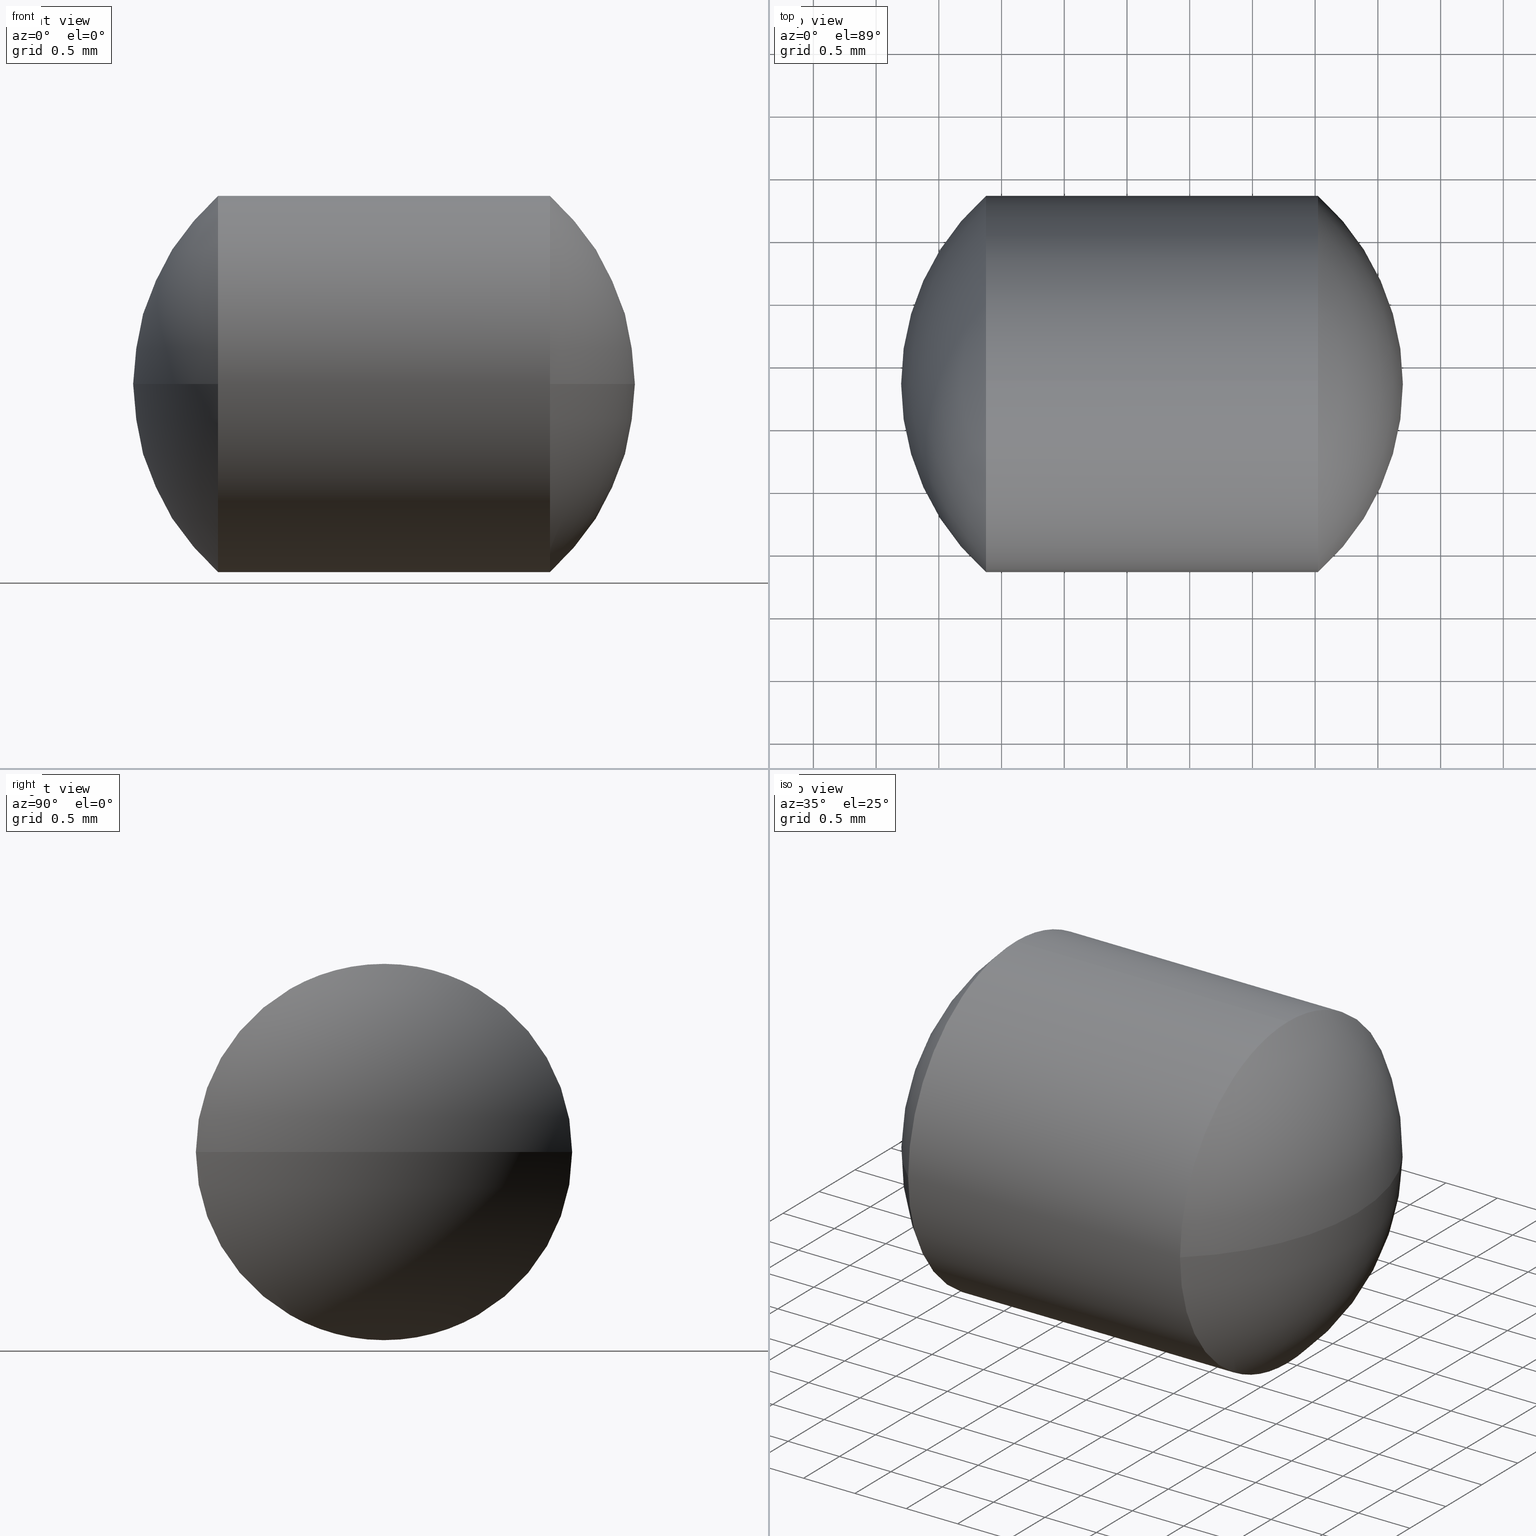
[diagram: canonical four-view strip — front | top / right | iso, engineering-drawing reading convention]
A machine part, canonical four-view strip (front | top / right | iso — engineering-drawing reading convention). The complete STEP part file that produces these views, byte-faithful:
ISO-10303-21;
HEADER;
FILE_DESCRIPTION (( 'STEP AP203' ),
    '1' );
FILE_NAME ('165002.STEP',
    '2019-06-04T01:59:16',
    ( '' ),
    ( '' ),
    'SwSTEP 2.0',
    'SolidWorks 2016',
    '' );
FILE_SCHEMA (( 'CONFIG_CONTROL_DESIGN' ));
ENDSEC;

DATA;
#1 = DIRECTION ( 'NONE',  ( -1.000000000000000000, -0.0000000000000000000, -0.0000000000000000000 ) ) ;
#2 = PRODUCT_RELATED_PRODUCT_CATEGORY ( 'detail', '', ( #69 ) ) ;
#3 = APPROVAL_ROLE ( '' ) ;
#4 = CALENDAR_DATE ( 2019, 4, 6 ) ;
#5 = DATE_TIME_ROLE ( 'classification_date' ) ;
#6 = DIRECTION ( 'NONE',  ( 0.0000000000000000000, 1.000000000000000000, 1.224646799147353900E-016 ) ) ;
#7 = CIRCLE ( 'NONE', #316, 2.000000000000001800 ) ;
#8 = EDGE_CURVE ( 'NONE', #278, #230, #55, .T. ) ;
#9 = VERTEX_POINT ( 'NONE', #54 ) ;
#10 = DATE_AND_TIME ( #130, #204 ) ;
#11 = CIRCLE ( 'NONE', #92, 1.500000000000029100 ) ;
#12 = AXIS2_PLACEMENT_3D ( 'NONE', #246, #307, #193 ) ;
#13 = APPROVAL_DATE_TIME ( #99, #125 ) ;
#14 = VERTEX_POINT ( 'NONE', #214 ) ;
#15 = DIRECTION ( 'NONE',  ( 0.0000000000000000000, 0.0000000000000000000, 1.000000000000000000 ) ) ;
#16 = SPHERICAL_SURFACE ( 'NONE', #78, 1.999999999999992200 ) ;
#17 = ADVANCED_FACE ( 'NONE', ( #291 ), #212, .T. ) ;
#18 = APPLICATION_CONTEXT ( 'configuration controlled 3d designs of mechanical parts and assemblies' ) ;
#19 = CC_DESIGN_PERSON_AND_ORGANIZATION_ASSIGNMENT ( #70, #238, ( #242 ) ) ;
#20 = APPLICATION_PROTOCOL_DEFINITION ( 'international standard', 'config_control_design', 1994, #39 ) ;
#21 = COORDINATED_UNIVERSAL_TIME_OFFSET ( 8, 0, .AHEAD. ) ;
#22 = EDGE_LOOP ( 'NONE', ( #26, #216, #122, #64, #342, #182 ) ) ;
#23 = FACE_OUTER_BOUND ( 'NONE', #189, .T. ) ;
#24 = AXIS2_PLACEMENT_3D ( 'NONE', #345, #79, #82 ) ;
#25 = CARTESIAN_POINT ( 'NONE',  ( 231.6993485743448400, 133.3448637497280600, 0.0000000000000000000 ) ) ;
#26 = ORIENTED_EDGE ( 'NONE', *, *, #237, .T. ) ;
#27 = VERTEX_POINT ( 'NONE', #340 ) ;
#28 = CARTESIAN_POINT ( 'NONE',  ( 229.6993485743448400, 133.3448637497280600, 0.0000000000000000000 ) ) ;
#29 = AXIS2_PLACEMENT_3D ( 'NONE', #330, #42, #121 ) ;
#30 = PERSON_AND_ORGANIZATION_ROLE ( 'classification_officer' ) ;
#31 = APPROVAL_ROLE ( '' ) ;
#32 = MANIFOLD_SOLID_BREP ( '��ת1', #321 ) ;
#33 = CC_DESIGN_PERSON_AND_ORGANIZATION_ASSIGNMENT ( #177, #296, ( #302 ) ) ;
#34 = LOCAL_TIME ( 9, 59, 16.00000000000000000, #303 ) ;
#35 = CALENDAR_DATE ( 2019, 4, 6 ) ;
#36 = ORIENTED_EDGE ( 'NONE', *, *, #259, .T. ) ;
#37 = CC_DESIGN_APPROVAL ( #186, ( #66 ) ) ;
#38 = DIRECTION ( 'NONE',  ( -1.000000000000000000, -0.0000000000000000000, -0.0000000000000000000 ) ) ;
#39 = APPLICATION_CONTEXT ( 'configuration controlled 3d designs of mechanical parts and assemblies' ) ;
#40 = AXIS2_PLACEMENT_3D ( 'NONE', #105, #132, #184 ) ;
#41 = CARTESIAN_POINT ( 'NONE',  ( 228.3764729188125400, 133.3448637497280600, 0.0000000000000000000 ) ) ;
#42 = DIRECTION ( 'NONE',  ( 0.0000000000000000000, 0.0000000000000000000, 1.000000000000000000 ) ) ;
#43 = LOCAL_TIME ( 9, 59, 16.00000000000000000, #164 ) ;
#44 = DATE_TIME_ROLE ( 'classification_date' ) ;
#45 = CALENDAR_DATE ( 2019, 4, 6 ) ;
#46 = CALENDAR_DATE ( 2019, 4, 6 ) ;
#47 = AXIS2_PLACEMENT_3D ( 'NONE', #108, #262, #6 ) ;
#48 = DIRECTION ( 'NONE',  ( 1.000000000000000000, 0.0000000000000000000, 0.0000000000000000000 ) ) ;
#49 = ORIENTED_EDGE ( 'NONE', *, *, #319, .T. ) ;
#50 = CC_DESIGN_PERSON_AND_ORGANIZATION_ASSIGNMENT ( #165, #162, ( #302 ) ) ;
#51 = DIRECTION ( 'NONE',  ( -0.0000000000000000000, 0.0000000000000000000, -1.000000000000000000 ) ) ;
#52 = APPLICATION_PROTOCOL_DEFINITION ( 'international standard', 'config_control_design', 1994, #210 ) ;
#53 = AXIS2_PLACEMENT_3D ( 'NONE', #269, #112, #48 ) ;
#54 = CARTESIAN_POINT ( 'NONE',  ( 228.3764729188125400, 131.8448637497280600, -1.836970198721032200E-016 ) ) ;
#55 = CIRCLE ( 'NONE', #53, 2.000000000000001800 ) ;
#56 = AXIS2_PLACEMENT_3D ( 'NONE', #323, #51, #239 ) ;
#57 = CARTESIAN_POINT ( 'NONE',  ( 229.6993485743448400, 133.3448637497280600, 0.0000000000000000000 ) ) ;
#58 = APPROVAL_PERSON_ORGANIZATION ( #87, #125, #65 ) ;
#59 = CARTESIAN_POINT ( 'NONE',  ( 228.3764729188125400, 133.3448637497280600, -1.500000000000001300 ) ) ;
#60 = CARTESIAN_POINT ( 'NONE',  ( 229.6993485743448400, 133.3448637497280600, 0.0000000000000000000 ) ) ;
#61 = ADVANCED_FACE ( 'NONE', ( #74 ), #217, .T. ) ;
#62 = DIRECTION ( 'NONE',  ( 0.0000000000000000000, 1.000000000000000000, 1.224646799147347500E-016 ) ) ;
#63 = ORIENTED_EDGE ( 'NONE', *, *, #218, .F. ) ;
#64 = ORIENTED_EDGE ( 'NONE', *, *, #319, .F. ) ;
#65 = APPROVAL_ROLE ( '' ) ;
#66 = SECURITY_CLASSIFICATION ( '', '', #236 ) ;
#67 = PERSON_AND_ORGANIZATION_ROLE ( 'classification_officer' ) ;
#68 = ADVANCED_BREP_SHAPE_REPRESENTATION ( '165002', ( #32, #168 ), #305 ) ;
#69 = PRODUCT ( '165002', '165002', '', ( #95 ) ) ;
#70 = PERSON_AND_ORGANIZATION ( #175, #129 ) ;
#71 = ORIENTED_EDGE ( 'NONE', *, *, #284, .F. ) ;
#72 = CIRCLE ( 'NONE', #73, 1.500000000000029100 ) ;
#73 = AXIS2_PLACEMENT_3D ( 'NONE', #298, #134, #188 ) ;
#74 = FACE_OUTER_BOUND ( 'NONE', #250, .T. ) ;
#75 = CIRCLE ( 'NONE', #287, 2.000000000000001800 ) ;
#76 = LOCAL_TIME ( 9, 59, 16.00000000000000000, #149 ) ;
#77 = APPROVAL_DATE_TIME ( #150, #310 ) ;
#78 = AXIS2_PLACEMENT_3D ( 'NONE', #28, #235, #109 ) ;
#79 = DIRECTION ( 'NONE',  ( -1.000000000000000000, -0.0000000000000000000, -0.0000000000000000000 ) ) ;
#80 = VECTOR ( 'NONE', #1, 1000.000000000000000 ) ;
#81 = DATE_TIME_ROLE ( 'creation_date' ) ;
#82 = DIRECTION ( 'NONE',  ( 0.0000000000000000000, 0.0000000000000000000, 1.000000000000000000 ) ) ;
#83 = PERSON_AND_ORGANIZATION ( #175, #129 ) ;
#84 = DESIGN_CONTEXT ( 'detailed design', #198, 'design' ) ;
#85 = CIRCLE ( 'NONE', #261, 1.500000000000001300 ) ;
#86 = CC_DESIGN_PERSON_AND_ORGANIZATION_ASSIGNMENT ( #104, #30, ( #66 ) ) ;
#87 = PERSON_AND_ORGANIZATION ( #175, #129 ) ;
#88 = ORIENTED_EDGE ( 'NONE', *, *, #152, .F. ) ;
#89 = CARTESIAN_POINT ( 'NONE',  ( 229.6993485743448400, 133.3448637497280600, 0.0000000000000000000 ) ) ;
#90 = VECTOR ( 'NONE', #131, 1000.000000000000000 ) ;
#91 = DIRECTION ( 'NONE',  ( 0.0000000000000000000, 1.000000000000000000, 0.0000000000000000000 ) ) ;
#92 = AXIS2_PLACEMENT_3D ( 'NONE', #93, #277, #194 ) ;
#93 = CARTESIAN_POINT ( 'NONE',  ( 231.0222242298770800, 133.3448637497280600, 0.0000000000000000000 ) ) ;
#94 =( NAMED_UNIT ( * ) PLANE_ANGLE_UNIT ( ) SI_UNIT ( $, .RADIAN. ) );
#95 = MECHANICAL_CONTEXT ( 'NONE', #18, 'mechanical' ) ;
#96 = MECHANICAL_CONTEXT ( 'NONE', #39, 'mechanical' ) ;
#97 = DATE_AND_TIME ( #317, #43 ) ;
#98 = CALENDAR_DATE ( 2019, 4, 6 ) ;
#99 = DATE_AND_TIME ( #4, #314 ) ;
#100 = AXIS2_PLACEMENT_3D ( 'NONE', #60, #142, #91 ) ;
#101 = CARTESIAN_POINT ( 'NONE',  ( 227.5435306962462500, 133.3448637497280600, 0.0000000000000000000 ) ) ;
#102 = VERTEX_POINT ( 'NONE', #25 ) ;
#103 = SECURITY_CLASSIFICATION ( '', '', #146 ) ;
#104 = PERSON_AND_ORGANIZATION ( #175, #129 ) ;
#105 = CARTESIAN_POINT ( 'NONE',  ( 231.0222242298770800, 133.3448637497280600, 0.0000000000000000000 ) ) ;
#106 = PERSON_AND_ORGANIZATION ( #175, #129 ) ;
#107 = ORIENTED_EDGE ( 'NONE', *, *, #237, .F. ) ;
#108 = CARTESIAN_POINT ( 'NONE',  ( 229.6993485743448400, 133.3448637497280600, 0.0000000000000000000 ) ) ;
#109 = DIRECTION ( 'NONE',  ( 0.0000000000000000000, 1.000000000000000000, 0.0000000000000000000 ) ) ;
#110 = APPROVAL_STATUS ( 'not_yet_approved' ) ;
#111 = AXIS2_PLACEMENT_3D ( 'NONE', #329, #120, #172 ) ;
#112 = DIRECTION ( 'NONE',  ( -0.0000000000000000000, 0.0000000000000000000, 1.000000000000000000 ) ) ;
#113 = COORDINATED_UNIVERSAL_TIME_OFFSET ( 8, 0, .AHEAD. ) ;
#114 = LOCAL_TIME ( 9, 59, 16.00000000000000000, #200 ) ;
#115 = ORIENTED_EDGE ( 'NONE', *, *, #222, .T. ) ;
#116 = SPHERICAL_SURFACE ( 'NONE', #100, 1.999999999999992200 ) ;
#117 = CC_DESIGN_DATE_AND_TIME_ASSIGNMENT ( #268, #5, ( #66 ) ) ;
#118 = DIRECTION ( 'NONE',  ( 1.000000000000000000, 0.0000000000000000000, 0.0000000000000000000 ) ) ;
#119 = DIRECTION ( 'NONE',  ( 0.0000000000000000000, 0.0000000000000000000, 1.000000000000000000 ) ) ;
#120 = DIRECTION ( 'NONE',  ( -1.000000000000000000, -0.0000000000000000000, -0.0000000000000000000 ) ) ;
#121 = DIRECTION ( 'NONE',  ( 1.000000000000000000, 0.0000000000000000000, 0.0000000000000000000 ) ) ;
#122 = ORIENTED_EDGE ( 'NONE', *, *, #205, .T. ) ;
#123 = APPLICATION_PROTOCOL_DEFINITION ( 'international standard', 'config_control_design', 1994, #198 ) ;
#124 = APPROVAL_DATE_TIME ( #190, #186 ) ;
#125 = APPROVAL ( #312, 'δָ��' ) ;
#126 = PERSON_AND_ORGANIZATION_ROLE ( 'design_owner' ) ;
#127 = CARTESIAN_POINT ( 'NONE',  ( 229.6993485743448400, 133.3448637497280600, 0.0000000000000000000 ) ) ;
#128 = PRODUCT_DEFINITION_SHAPE ( 'NONE', 'NONE',  #242 ) ;
#129 = ORGANIZATION ( 'δָ��', 'δָ��', '' ) ;
#130 = CALENDAR_DATE ( 2019, 4, 6 ) ;
#131 = DIRECTION ( 'NONE',  ( -1.000000000000000000, -0.0000000000000000000, -0.0000000000000000000 ) ) ;
#132 = DIRECTION ( 'NONE',  ( -1.000000000000000000, -0.0000000000000000000, -0.0000000000000000000 ) ) ;
#133 = APPROVAL_PERSON_ORGANIZATION ( #264, #343, #283 ) ;
#134 = DIRECTION ( 'NONE',  ( -1.000000000000000000, -0.0000000000000000000, -0.0000000000000000000 ) ) ;
#135 = VERTEX_POINT ( 'NONE', #326 ) ;
#136 = EDGE_LOOP ( 'NONE', ( #88, #159, #154, #151 ) ) ;
#137 = PRODUCT_DEFINITION ( 'δ֪', '', #192, #84 ) ;
#138 = CARTESIAN_POINT ( 'NONE',  ( 231.0222242298770800, 133.3448637497280600, -1.500000000000029300 ) ) ;
#139 = LOCAL_TIME ( 9, 59, 16.00000000000000000, #294 ) ;
#140 = DIRECTION ( 'NONE',  ( -1.000000000000000000, -0.0000000000000000000, -0.0000000000000000000 ) ) ;
#141 = CIRCLE ( 'NONE', #47, 2.000000000000001800 ) ;
#142 = DIRECTION ( 'NONE',  ( -0.0000000000000000000, 0.0000000000000000000, -1.000000000000000000 ) ) ;
#143 = ORIENTED_EDGE ( 'NONE', *, *, #240, .F. ) ;
#144 = CC_DESIGN_APPROVAL ( #337, ( #302 ) ) ;
#145 = CARTESIAN_POINT ( 'NONE',  ( 231.0222242298770800, 133.3448637497280600, 0.0000000000000000000 ) ) ;
#146 = SECURITY_CLASSIFICATION_LEVEL ( 'unclassified' ) ;
#147 = PRODUCT ( '165002', '165002', '', ( #96 ) ) ;
#148 = DATE_TIME_ROLE ( 'creation_date' ) ;
#149 = COORDINATED_UNIVERSAL_TIME_OFFSET ( 8, 0, .AHEAD. ) ;
#150 = DATE_AND_TIME ( #215, #208 ) ;
#151 = ORIENTED_EDGE ( 'NONE', *, *, #8, .T. ) ;
#152 = EDGE_CURVE ( 'NONE', #9, #230, #141, .T. ) ;
#153 = LINE ( 'NONE', #327, #80 ) ;
#154 = ORIENTED_EDGE ( 'NONE', *, *, #191, .T. ) ;
#155 = UNCERTAINTY_MEASURE_WITH_UNIT (LENGTH_MEASURE( 1.000000000000000100E-005 ), #247, 'distance_accuracy_value', 'NONE');
#156 = CYLINDRICAL_SURFACE ( 'NONE', #338, 1.500000000000015100 ) ;
#157 = CC_DESIGN_APPROVAL ( #267, ( #137 ) ) ;
#158 = APPROVAL_PERSON_ORGANIZATION ( #225, #310, #31 ) ;
#159 = ORIENTED_EDGE ( 'NONE', *, *, #300, .T. ) ;
#160 = CARTESIAN_POINT ( 'NONE',  ( 227.6993485743448400, 133.3448637497280600, 0.0000000000000000000 ) ) ;
#161 = LINE ( 'NONE', #293, #90 ) ;
#162 = PERSON_AND_ORGANIZATION_ROLE ( 'design_supplier' ) ;
#163 = CC_DESIGN_PERSON_AND_ORGANIZATION_ASSIGNMENT ( #253, #251, ( #137 ) ) ;
#164 = COORDINATED_UNIVERSAL_TIME_OFFSET ( 8, 0, .AHEAD. ) ;
#165 = PERSON_AND_ORGANIZATION ( #175, #129 ) ;
#166 = DATE_AND_TIME ( #35, #139 ) ;
#167 = CARTESIAN_POINT ( 'NONE',  ( 231.0222242298770800, 131.8448637497280300, -1.836970198721071100E-016 ) ) ;
#168 = AXIS2_PLACEMENT_3D ( 'NONE', #308, #332, #219 ) ;
#169 = DIRECTION ( 'NONE',  ( 0.0000000000000000000, 0.0000000000000000000, 1.000000000000000000 ) ) ;
#170 = ADVANCED_FACE ( 'NONE', ( #23 ), #226, .T. ) ;
#171 = CARTESIAN_POINT ( 'NONE',  ( 227.5435306962462500, 133.3448637497280600, 0.0000000000000000000 ) ) ;
#172 = DIRECTION ( 'NONE',  ( 0.0000000000000000000, 0.0000000000000000000, 1.000000000000000000 ) ) ;
#173 = PRODUCT_DEFINITION_SHAPE ( 'NONE', 'NONE',  #137 ) ;
#174 = APPROVAL_STATUS ( 'not_yet_approved' ) ;
#175 = PERSON ( 'δָ��', 'δָ��', 'δָ��', ('δָ��'), ('δָ��'), ('δָ��') ) ;
#176 = CC_DESIGN_PERSON_AND_ORGANIZATION_ASSIGNMENT ( #339, #311, ( #192 ) ) ;
#177 = PERSON_AND_ORGANIZATION ( #175, #129 ) ;
#178 = PERSON_AND_ORGANIZATION ( #175, #129 ) ;
#179 = EDGE_LOOP ( 'NONE', ( #333, #209, #63, #71 ) ) ;
#180 = DIRECTION ( 'NONE',  ( -1.000000000000000000, -0.0000000000000000000, -0.0000000000000000000 ) ) ;
#181 = CC_DESIGN_PERSON_AND_ORGANIZATION_ASSIGNMENT ( #178, #221, ( #192 ) ) ;
#182 = ORIENTED_EDGE ( 'NONE', *, *, #222, .F. ) ;
#183 = COORDINATED_UNIVERSAL_TIME_OFFSET ( 8, 0, .AHEAD. ) ;
#184 = DIRECTION ( 'NONE',  ( 0.0000000000000000000, 0.0000000000000000000, 1.000000000000000000 ) ) ;
#185 = APPROVAL_STATUS ( 'not_yet_approved' ) ;
#186 = APPROVAL ( #185, 'δָ��' ) ;
#187 = APPROVAL_STATUS ( 'not_yet_approved' ) ;
#188 = DIRECTION ( 'NONE',  ( 0.0000000000000000000, 0.0000000000000000000, 1.000000000000000000 ) ) ;
#189 = EDGE_LOOP ( 'NONE', ( #223, #295, #273, #49 ) ) ;
#190 = DATE_AND_TIME ( #98, #258 ) ;
#191 = EDGE_CURVE ( 'NONE', #135, #278, #276, .T. ) ;
#192 = PRODUCT_DEFINITION_FORMATION_WITH_SPECIFIED_SOURCE ( '�κ�', '', #147, .NOT_KNOWN. ) ;
#193 = DIRECTION ( 'NONE',  ( 0.0000000000000000000, 0.0000000000000000000, 1.000000000000000000 ) ) ;
#194 = DIRECTION ( 'NONE',  ( 0.0000000000000000000, 0.0000000000000000000, 1.000000000000000000 ) ) ;
#195 = ORIENTED_EDGE ( 'NONE', *, *, #259, .F. ) ;
#196 = CC_DESIGN_PERSON_AND_ORGANIZATION_ASSIGNMENT ( #106, #67, ( #103 ) ) ;
#197 = ORIENTED_EDGE ( 'NONE', *, *, #299, .F. ) ;
#198 = APPLICATION_CONTEXT ( 'configuration controlled 3d designs of mechanical parts and assemblies' ) ;
#199 = FACE_OUTER_BOUND ( 'NONE', #22, .T. ) ;
#200 = COORDINATED_UNIVERSAL_TIME_OFFSET ( 8, 0, .AHEAD. ) ;
#201 = CC_DESIGN_PERSON_AND_ORGANIZATION_ASSIGNMENT ( #83, #126, ( #147 ) ) ;
#202 = ORIENTED_EDGE ( 'NONE', *, *, #218, .T. ) ;
#203 = APPROVAL_PERSON_ORGANIZATION ( #280, #267, #282 ) ;
#204 = LOCAL_TIME ( 9, 59, 16.00000000000000000, #113 ) ;
#205 = EDGE_CURVE ( 'NONE', #341, #266, #161, .T. ) ;
#206 = CC_DESIGN_SECURITY_CLASSIFICATION ( #103, ( #192 ) ) ;
#207 = APPROVAL_ROLE ( '' ) ;
#208 = LOCAL_TIME ( 9, 59, 16.00000000000000000, #183 ) ;
#209 = ORIENTED_EDGE ( 'NONE', *, *, #240, .T. ) ;
#210 = APPLICATION_CONTEXT ( 'configuration controlled 3d designs of mechanical parts and assemblies' ) ;
#211 = CIRCLE ( 'NONE', #40, 1.500000000000029100 ) ;
#212 = SPHERICAL_SURFACE ( 'NONE', #325, 2.000000000000002700 ) ;
#213 = CC_DESIGN_DATE_AND_TIME_ASSIGNMENT ( #233, #44, ( #103 ) ) ;
#214 = CARTESIAN_POINT ( 'NONE',  ( 231.0222242298770800, 134.8448637497280900, 0.0000000000000000000 ) ) ;
#215 = CALENDAR_DATE ( 2019, 4, 6 ) ;
#216 = ORIENTED_EDGE ( 'NONE', *, *, #284, .T. ) ;
#217 = CYLINDRICAL_SURFACE ( 'NONE', #274, 1.500000000000015100 ) ;
#218 = EDGE_CURVE ( 'NONE', #341, #315, #211, .T. ) ;
#219 = DIRECTION ( 'NONE',  ( 1.000000000000000000, 0.0000000000000000000, 0.0000000000000000000 ) ) ;
#220 = CARTESIAN_POINT ( 'NONE',  ( 228.3764729188125400, 134.8448637497280600, 0.0000000000000000000 ) ) ;
#221 = PERSON_AND_ORGANIZATION_ROLE ( 'creator' ) ;
#222 = EDGE_CURVE ( 'NONE', #27, #135, #153, .T. ) ;
#223 = ORIENTED_EDGE ( 'NONE', *, *, #299, .T. ) ;
#224 = ADVANCED_FACE ( 'NONE', ( #297 ), #16, .T. ) ;
#225 = PERSON_AND_ORGANIZATION ( #175, #129 ) ;
#226 = SPHERICAL_SURFACE ( 'NONE', #56, 2.000000000000002700 ) ;
#227 = DIRECTION ( 'NONE',  ( 0.0000000000000000000, 1.000000000000000000, 0.0000000000000000000 ) ) ;
#228 = PRODUCT_RELATED_PRODUCT_CATEGORY ( 'detail', '', ( #147 ) ) ;
#229 = CIRCLE ( 'NONE', #12, 1.500000000000001300 ) ;
#230 = VERTEX_POINT ( 'NONE', #160 ) ;
#231 = SHAPE_DEFINITION_REPRESENTATION ( #128, #68 ) ;
#232 = CC_DESIGN_SECURITY_CLASSIFICATION ( #66, ( #302 ) ) ;
#233 = DATE_AND_TIME ( #272, #288 ) ;
#234 = ORIENTED_EDGE ( 'NONE', *, *, #205, .F. ) ;
#235 = DIRECTION ( 'NONE',  ( -0.0000000000000000000, 0.0000000000000000000, -1.000000000000000000 ) ) ;
#236 = SECURITY_CLASSIFICATION_LEVEL ( 'unclassified' ) ;
#237 = EDGE_CURVE ( 'NONE', #27, #14, #72, .T. ) ;
#238 = PERSON_AND_ORGANIZATION_ROLE ( 'creator' ) ;
#239 = DIRECTION ( 'NONE',  ( 0.0000000000000000000, 1.000000000000000000, 0.0000000000000000000 ) ) ;
#240 = EDGE_CURVE ( 'NONE', #102, #315, #7, .T. ) ;
#241 = PERSON_AND_ORGANIZATION ( #175, #129 ) ;
#242 = PRODUCT_DEFINITION ( 'δ֪', '', #302, #281 ) ;
#243 = COORDINATED_UNIVERSAL_TIME_OFFSET ( 8, 0, .AHEAD. ) ;
#244 = EDGE_LOOP ( 'NONE', ( #143, #265, #107, #195 ) ) ;
#245 = CIRCLE ( 'NONE', #255, 1.500000000000029100 ) ;
#246 = CARTESIAN_POINT ( 'NONE',  ( 228.3764729188125400, 133.3448637497280600, 0.0000000000000000000 ) ) ;
#247 =( LENGTH_UNIT ( ) NAMED_UNIT ( * ) SI_UNIT ( .MILLI., .METRE. ) );
#248 = CC_DESIGN_APPROVAL ( #125, ( #192 ) ) ;
#249 = APPLICATION_PROTOCOL_DEFINITION ( 'international standard', 'config_control_design', 1994, #18 ) ;
#250 = EDGE_LOOP ( 'NONE', ( #234, #202, #36, #115, #301, #197 ) ) ;
#251 = PERSON_AND_ORGANIZATION_ROLE ( 'creator' ) ;
#252 = PERSON_AND_ORGANIZATION ( #175, #129 ) ;
#253 = PERSON_AND_ORGANIZATION ( #175, #129 ) ;
#254 = ADVANCED_FACE ( 'NONE', ( #344 ), #116, .T. ) ;
#255 = AXIS2_PLACEMENT_3D ( 'NONE', #145, #270, #169 ) ;
#256 = PERSON_AND_ORGANIZATION ( #175, #129 ) ;
#257 = DIRECTION ( 'NONE',  ( -0.0000000000000000000, 0.0000000000000000000, -1.000000000000000000 ) ) ;
#258 = LOCAL_TIME ( 9, 59, 16.00000000000000000, #334 ) ;
#259 = EDGE_CURVE ( 'NONE', #315, #27, #245, .T. ) ;
#260 = CC_DESIGN_DATE_AND_TIME_ASSIGNMENT ( #97, #148, ( #137 ) ) ;
#261 = AXIS2_PLACEMENT_3D ( 'NONE', #41, #38, #119 ) ;
#262 = DIRECTION ( 'NONE',  ( 0.0000000000000000000, 1.224646799147353200E-016, -1.000000000000000000 ) ) ;
#263 = PERSON_AND_ORGANIZATION_ROLE ( 'design_owner' ) ;
#264 = PERSON_AND_ORGANIZATION ( #175, #129 ) ;
#265 = ORIENTED_EDGE ( 'NONE', *, *, #331, .T. ) ;
#266 = VERTEX_POINT ( 'NONE', #59 ) ;
#267 = APPROVAL ( #335, 'δָ��' ) ;
#268 = DATE_AND_TIME ( #45, #34 ) ;
#269 = CARTESIAN_POINT ( 'NONE',  ( 229.6993485743448400, 133.3448637497280600, 0.0000000000000000000 ) ) ;
#270 = DIRECTION ( 'NONE',  ( -1.000000000000000000, -0.0000000000000000000, -0.0000000000000000000 ) ) ;
#271 = DIRECTION ( 'NONE',  ( -0.0000000000000000000, 0.0000000000000000000, 1.000000000000000000 ) ) ;
#272 = CALENDAR_DATE ( 2019, 4, 6 ) ;
#273 = ORIENTED_EDGE ( 'NONE', *, *, #8, .F. ) ;
#274 = AXIS2_PLACEMENT_3D ( 'NONE', #101, #180, #290 ) ;
#275 = DIRECTION ( 'NONE',  ( 0.0000000000000000000, 1.224646799147353200E-016, -1.000000000000000000 ) ) ;
#276 = CIRCLE ( 'NONE', #24, 1.500000000000001300 ) ;
#277 = DIRECTION ( 'NONE',  ( -1.000000000000000000, -0.0000000000000000000, -0.0000000000000000000 ) ) ;
#278 = VERTEX_POINT ( 'NONE', #220 ) ;
#279 =( NAMED_UNIT ( * ) SI_UNIT ( $, .STERADIAN. ) SOLID_ANGLE_UNIT ( ) );
#280 = PERSON_AND_ORGANIZATION ( #175, #129 ) ;
#281 = DESIGN_CONTEXT ( 'detailed design', #210, 'design' ) ;
#282 = APPROVAL_ROLE ( '' ) ;
#283 = APPROVAL_ROLE ( '' ) ;
#284 = EDGE_CURVE ( 'NONE', #14, #341, #11, .T. ) ;
#285 = CC_DESIGN_APPROVAL ( #310, ( #242 ) ) ;
#286 = CALENDAR_DATE ( 2019, 4, 6 ) ;
#287 = AXIS2_PLACEMENT_3D ( 'NONE', #89, #271, #118 ) ;
#288 = LOCAL_TIME ( 9, 59, 16.00000000000000000, #21 ) ;
#289 = APPROVAL_DATE_TIME ( #306, #267 ) ;
#290 = DIRECTION ( 'NONE',  ( 0.0000000000000000000, 0.0000000000000000000, 1.000000000000000000 ) ) ;
#291 = FACE_OUTER_BOUND ( 'NONE', #136, .T. ) ;
#292 = CC_DESIGN_PERSON_AND_ORGANIZATION_ASSIGNMENT ( #252, #263, ( #69 ) ) ;
#293 = CARTESIAN_POINT ( 'NONE',  ( 227.5435306962462500, 133.3448637497280600, -1.500000000000015100 ) ) ;
#294 = COORDINATED_UNIVERSAL_TIME_OFFSET ( 8, 0, .AHEAD. ) ;
#295 = ORIENTED_EDGE ( 'NONE', *, *, #152, .T. ) ;
#296 = PERSON_AND_ORGANIZATION_ROLE ( 'creator' ) ;
#297 = FACE_OUTER_BOUND ( 'NONE', #244, .T. ) ;
#298 = CARTESIAN_POINT ( 'NONE',  ( 231.0222242298770800, 133.3448637497280600, 0.0000000000000000000 ) ) ;
#299 = EDGE_CURVE ( 'NONE', #266, #9, #229, .T. ) ;
#300 = EDGE_CURVE ( 'NONE', #9, #135, #324, .T. ) ;
#301 = ORIENTED_EDGE ( 'NONE', *, *, #300, .F. ) ;
#302 = PRODUCT_DEFINITION_FORMATION_WITH_SPECIFIED_SOURCE ( '�κ�', '', #69, .NOT_KNOWN. ) ;
#303 = COORDINATED_UNIVERSAL_TIME_OFFSET ( 8, 0, .AHEAD. ) ;
#304 = APPROVAL_DATE_TIME ( #166, #343 ) ;
#305 =( GEOMETRIC_REPRESENTATION_CONTEXT ( 3 ) GLOBAL_UNCERTAINTY_ASSIGNED_CONTEXT ( ( #155 ) ) GLOBAL_UNIT_ASSIGNED_CONTEXT ( ( #247, #94, #279 ) ) REPRESENTATION_CONTEXT ( 'NONE', 'WORKASPACE' ) );
#306 = DATE_AND_TIME ( #286, #76 ) ;
#307 = DIRECTION ( 'NONE',  ( -1.000000000000000000, -0.0000000000000000000, -0.0000000000000000000 ) ) ;
#308 = CARTESIAN_POINT ( 'NONE',  ( 0.0000000000000000000, 0.0000000000000000000, 0.0000000000000000000 ) ) ;
#309 = APPROVAL_PERSON_ORGANIZATION ( #256, #337, #3 ) ;
#310 = APPROVAL ( #187, 'δָ��' ) ;
#311 = PERSON_AND_ORGANIZATION_ROLE ( 'design_supplier' ) ;
#312 = APPROVAL_STATUS ( 'not_yet_approved' ) ;
#313 = APPROVAL_DATE_TIME ( #10, #337 ) ;
#314 = LOCAL_TIME ( 9, 59, 16.00000000000000000, #243 ) ;
#315 = VERTEX_POINT ( 'NONE', #167 ) ;
#316 = AXIS2_PLACEMENT_3D ( 'NONE', #57, #275, #62 ) ;
#317 = CALENDAR_DATE ( 2019, 4, 6 ) ;
#318 = APPROVAL_PERSON_ORGANIZATION ( #241, #186, #207 ) ;
#319 = EDGE_CURVE ( 'NONE', #278, #266, #85, .T. ) ;
#320 = DATE_AND_TIME ( #46, #114 ) ;
#321 = CLOSED_SHELL ( 'NONE', ( #254, #170, #336, #61, #17, #224 ) ) ;
#322 = CC_DESIGN_APPROVAL ( #343, ( #103 ) ) ;
#323 = CARTESIAN_POINT ( 'NONE',  ( 229.6993485743448400, 133.3448637497280600, 0.0000000000000000000 ) ) ;
#324 = CIRCLE ( 'NONE', #111, 1.500000000000001300 ) ;
#325 = AXIS2_PLACEMENT_3D ( 'NONE', #127, #257, #227 ) ;
#326 = CARTESIAN_POINT ( 'NONE',  ( 228.3764729188125400, 133.3448637497280600, 1.500000000000001300 ) ) ;
#327 = CARTESIAN_POINT ( 'NONE',  ( 227.5435306962462500, 133.3448637497280600, 1.500000000000015100 ) ) ;
#328 = CC_DESIGN_DATE_AND_TIME_ASSIGNMENT ( #320, #81, ( #242 ) ) ;
#329 = CARTESIAN_POINT ( 'NONE',  ( 228.3764729188125400, 133.3448637497280600, 0.0000000000000000000 ) ) ;
#330 = CARTESIAN_POINT ( 'NONE',  ( 0.0000000000000000000, 0.0000000000000000000, 0.0000000000000000000 ) ) ;
#331 = EDGE_CURVE ( 'NONE', #102, #14, #75, .T. ) ;
#332 = DIRECTION ( 'NONE',  ( 0.0000000000000000000, 0.0000000000000000000, 1.000000000000000000 ) ) ;
#333 = ORIENTED_EDGE ( 'NONE', *, *, #331, .F. ) ;
#334 = COORDINATED_UNIVERSAL_TIME_OFFSET ( 8, 0, .AHEAD. ) ;
#335 = APPROVAL_STATUS ( 'not_yet_approved' ) ;
#336 = ADVANCED_FACE ( 'NONE', ( #199 ), #156, .T. ) ;
#337 = APPROVAL ( #110, 'δָ��' ) ;
#338 = AXIS2_PLACEMENT_3D ( 'NONE', #171, #140, #15 ) ;
#339 = PERSON_AND_ORGANIZATION ( #175, #129 ) ;
#340 = CARTESIAN_POINT ( 'NONE',  ( 231.0222242298770800, 133.3448637497280600, 1.500000000000029100 ) ) ;
#341 = VERTEX_POINT ( 'NONE', #138 ) ;
#342 = ORIENTED_EDGE ( 'NONE', *, *, #191, .F. ) ;
#343 = APPROVAL ( #174, 'δָ��' ) ;
#344 = FACE_OUTER_BOUND ( 'NONE', #179, .T. ) ;
#345 = CARTESIAN_POINT ( 'NONE',  ( 228.3764729188125400, 133.3448637497280600, 0.0000000000000000000 ) ) ;
ENDSEC;
END-ISO-10303-21;
